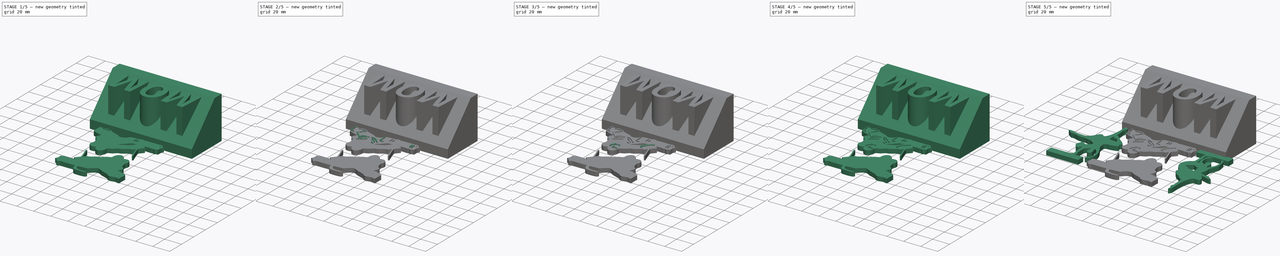
[diagram: build sequence overview — one tinted view per stage of 5, left to right]
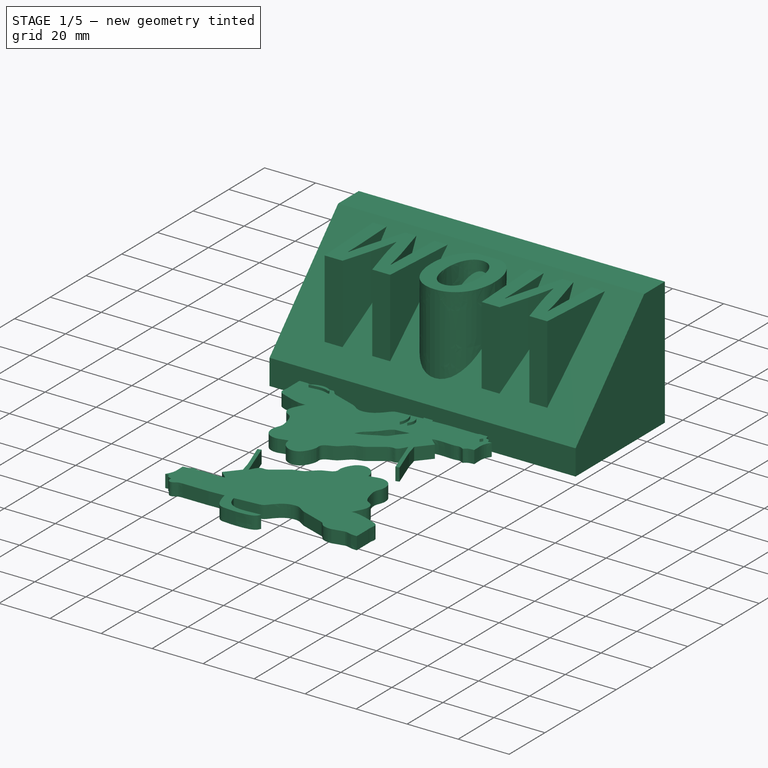
[diagram: stage 1 of 5 — iso view after this stage's code; geometry added in this stage tinted green]
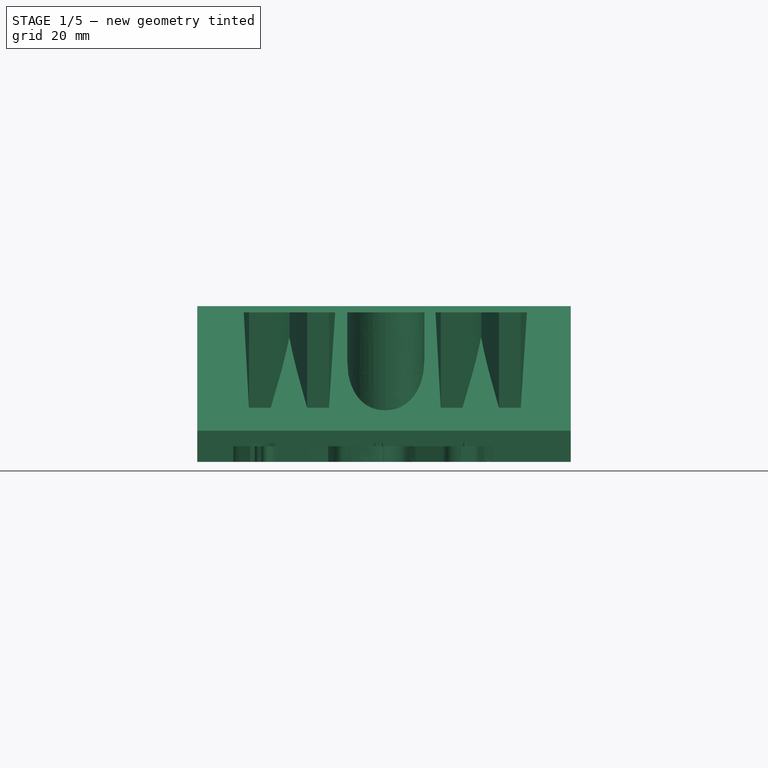
[diagram: stage 1 of 5 — front view after this stage's code; geometry added in this stage tinted green]
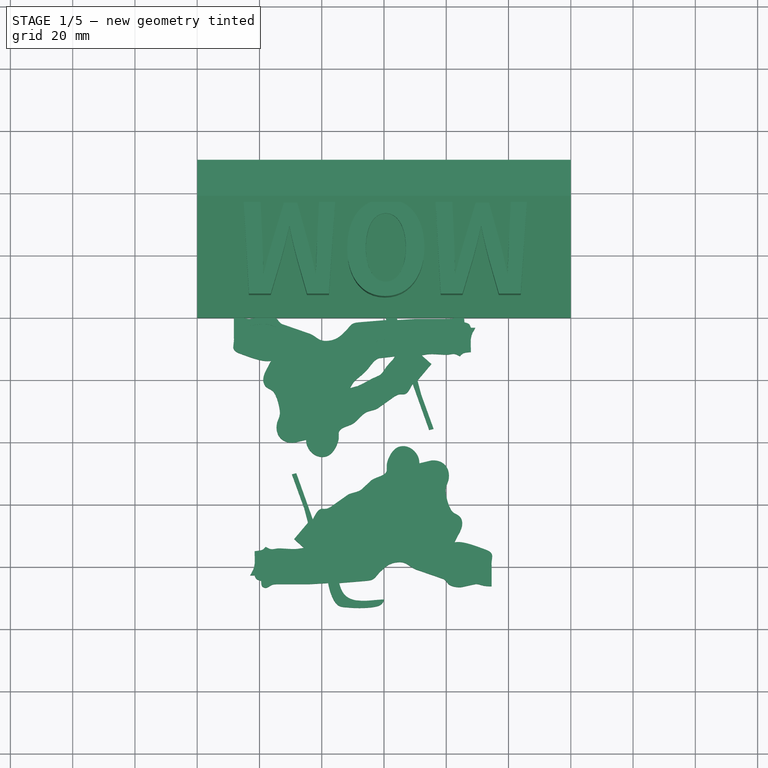
[diagram: stage 1 of 5 — top view after this stage's code; geometry added in this stage tinted green]
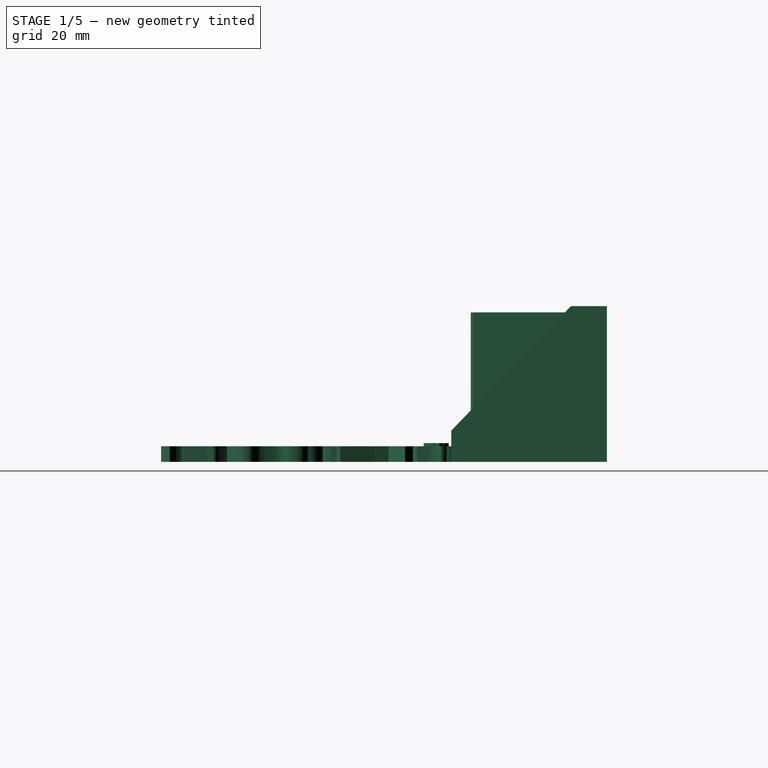
[diagram: stage 1 of 5 — right view after this stage's code; geometry added in this stage tinted green]
FCSTD DOCUMENT  (FreeCAD 0.15R4671 (Git))
Label: Andrea Desk
License: All rights reserved
LicenseURL: http://en.wikipedia.org/wiki/All_rights_reserved
objects: Part::Extrusion×56, Part::Feature×27, App::DocumentObjectGroup×5, Part::Cut×4, Sketcher::SketchObject×1, PartDesign::Pad×1, Part::Part2DObjectPython×1
note: 91 computed .brp shape members not serialized (recipe doc carries the construction recipe); baked Part::Feature solids carry a one-line shape summary decoded from their .brp

FEATURE [Part::Extrusion] Extrude194
  Base = -> Face023
  Dir = (0,0,6)
  Placement = pos=(-13.6531,-85.8584,0) rot=(0,0,1;3.14159rad)
  Solid = false
FEATURE [Part::Extrusion] Extrude195
  Base = -> Face024
  Dir = (0,0,6)
  Placement = pos=(-13.6531,-85.8584,0) rot=(0,0,1;3.14159rad)
  Solid = false
FEATURE [Part::Extrusion] Extrude196
  Base = -> Face025
  Dir = (0,0,6)
  Placement = pos=(-13.6531,-85.8584,0) rot=(0,0,1;3.14159rad)
  Solid = false
FEATURE [Part::Extrusion] Extrude197
  Base = -> Face026
  Dir = (0,0,6)
  Placement = pos=(-13.6531,-85.8584,0) rot=(0,0,1;3.14159rad)
  Solid = false
FEATURE [Part::Extrusion] Extrude198
  Base = -> Face004
  Dir = (0,0,5)
  Solid = false
FEATURE [Part::Extrusion] Extrude199
  Base = -> Face011
  Dir = (0,0,5)
  Solid = false
FEATURE [Part::Extrusion] Extrude200
  Base = -> Face004
  Dir = (0,0,5)
  Solid = false
FEATURE [Part::Extrusion] Extrude201
  Base = -> Face011
  Dir = (0,0,5)
  Solid = false
FEATURE [Part::Cut] Cut002
  Base = -> Extrude199
  Placement = pos=(-13.6531,-85.8584,0) rot=(0,0,1;3.14159rad)
  Tool = -> Extrude198
FEATURE [Part::Cut] Cut003
  Base = -> Extrude200
  Placement = pos=(-13.6531,-85.8584,0) rot=(0,0,1;3.14159rad)
  Tool = -> Extrude201
FEATURE [App::DocumentObjectGroup] Group002  label="Goalie"
  Group = -> [Face004,Face005,Face006,Face007,Face008,Face009,Face010,Face011,Face012,Face013,Face014,Face015,Face016,Face017,Face018,Face019,Face020,Face021,Face022,Face023,Face024,Face025,Face026,Extrude156,Extrude157,Extrude158,Extrude159,Extrude160,Extrude161,Extrude162,Extrude163,Extrude164,Extrude165,Extrude166,Extrude167,Extrude168,Extrude169,Extrude170,Extrude171,Extrude172,Extrude173,Extrude174,+25 more]
FEATURE [Sketcher::SketchObject] Sketch
  Placement = pos=(0,0,0) rot=(0.57735,0.57735,0.57735;2.0944rad)
  sketch-geometry (5):
    g0: LineSegment StartX=0 StartY=0 StartZ=0 EndX=50 EndY=0 EndZ=0
    g1: LineSegment StartX=50 StartY=0 StartZ=0 EndX=50 EndY=50 EndZ=0
    g2: LineSegment StartX=50 StartY=50 StartZ=0 EndX=38.4497 EndY=50 EndZ=0
    g3: LineSegment StartX=38.4497 StartY=50 StartZ=0 EndX=0 EndY=10 EndZ=0
    g4: LineSegment StartX=0 StartY=10 StartZ=0 EndX=0 EndY=0 EndZ=0
  constraints (13):
    c: Coincident(g-1,g0)
    c: Horizontal(g0)
    c: Coincident(g0,g1)
    c: Vertical(g1)
    c: Coincident(g1,g2)
    c: Horizontal(g2)
    c: Coincident(g2,g3)
    c: PointOnObject(g3,g-2)
    c: Coincident(g3,g4)
    c: Coincident(g4,g0)
    c: DistanceY(g1) = 50
    c: DistanceY(g4) = -10
    c: DistanceX(g0) = 50
FEATURE [PartDesign::Pad] Pad
  Length = 120
  Length2 = 100
  Midplane = true
  Placement = pos=(0,0,0) rot=(0.57735,0.57735,0.57735;2.0944rad)
  Sketch = -> Sketch
  Type = 0
FEATURE [App::DocumentObjectGroup] Group003  label="Block"
  Group = -> [Pad]
FEATURE [Part::Part2DObjectPython] ShapeString  # Draft 2D object (typed FeaturePython)
  FontFile = <userpath>/Desktop/AdobeGothicStd-Bold.otf
  Placement = pos=(-117.015,-43.3086,0) rot=(0,0,1;3.14159rad)
  Size = 25
  String = MOM
  Tracking = 0
FEATURE [Part::Extrusion] Extrude202
  Base = -> ShapeString
  Dir = (0,0,40)
  Placement = pos=(165,80,8) rot=(0,0,1;0rad)
  Solid = false
FEATURE [Part::Extrusion] Extrude203
  Base = -> ShapeString
  Dir = (0,0,40)
  Placement = pos=(165,80,8) rot=(0,0,1;0rad)
  Solid = false
FEATURE [App::DocumentObjectGroup] Group004  label="Letters"
  Group = -> [Extrude202,Extrude203]
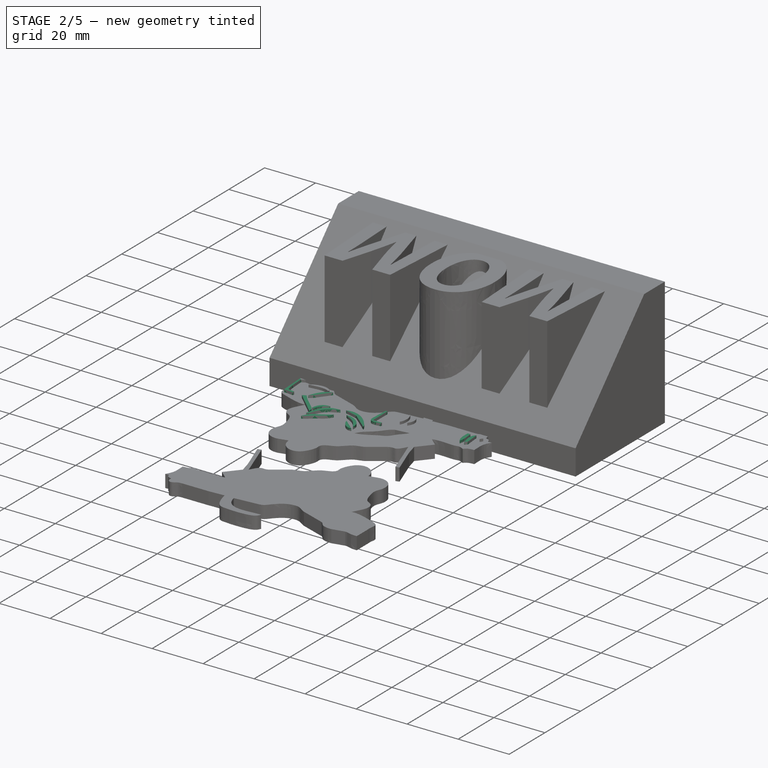
[diagram: stage 2 of 5 — iso view after this stage's code; geometry added in this stage tinted green]
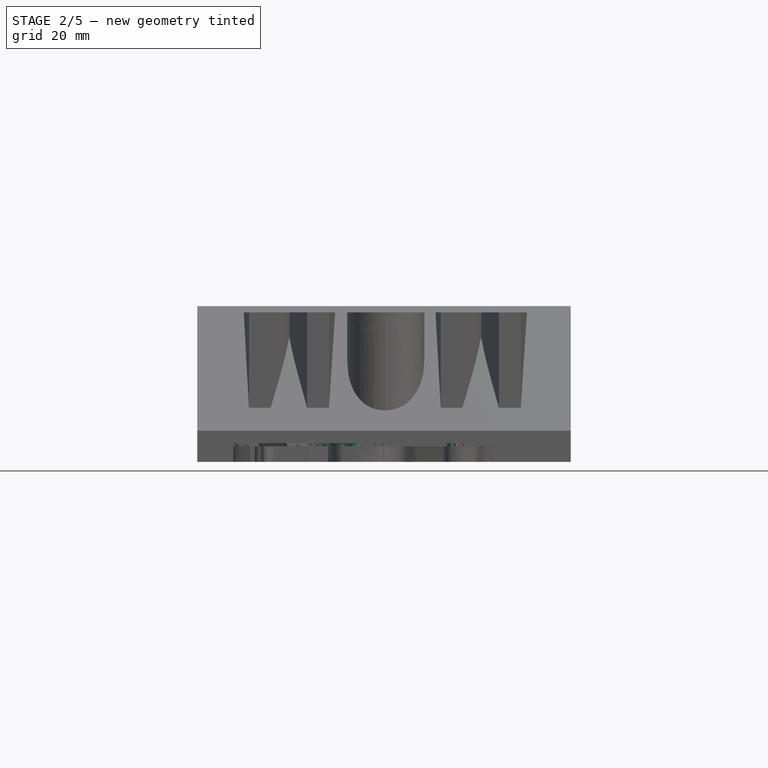
[diagram: stage 2 of 5 — front view after this stage's code; geometry added in this stage tinted green]
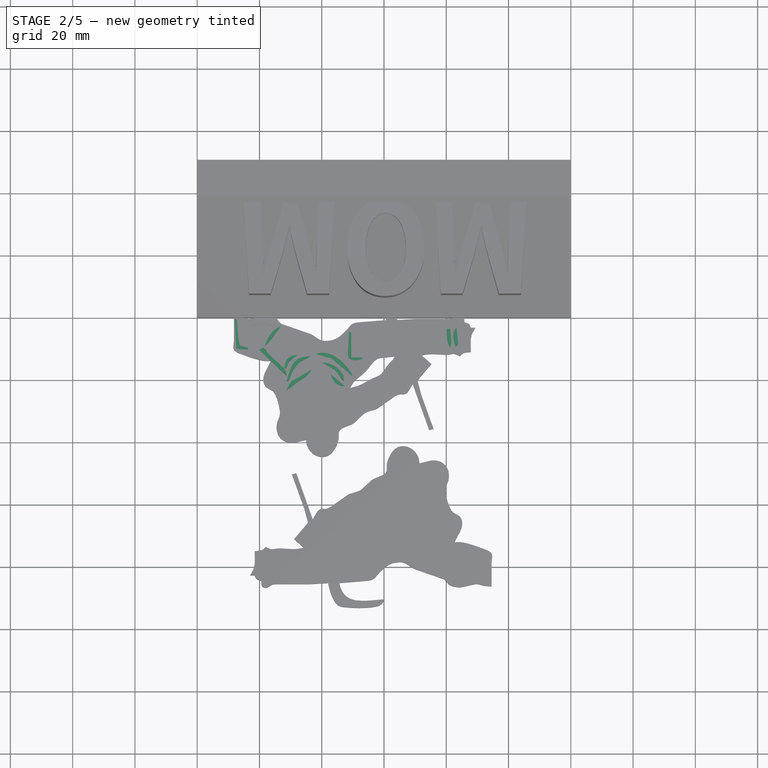
[diagram: stage 2 of 5 — top view after this stage's code; geometry added in this stage tinted green]
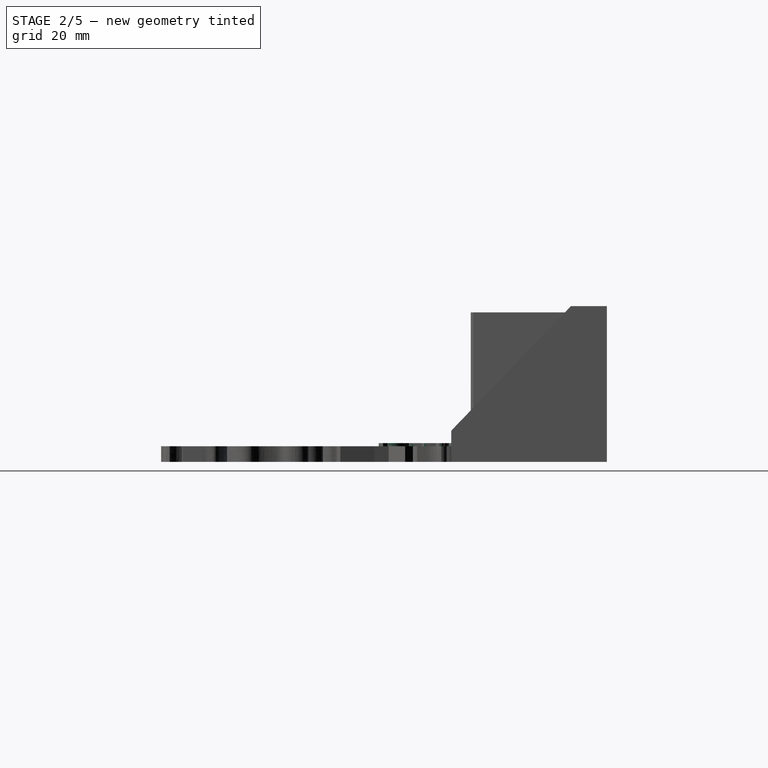
[diagram: stage 2 of 5 — right view after this stage's code; geometry added in this stage tinted green]
FEATURE [Part::Extrusion] Extrude182
  Base = -> Face010
  Dir = (0,0,6)
  Placement = pos=(-13.6531,-85.8584,0) rot=(0,0,1;3.14159rad)
  Solid = false
FEATURE [Part::Extrusion] Extrude183
  Base = -> Face012
  Dir = (0,0,6)
  Placement = pos=(-13.6531,-85.8584,0) rot=(0,0,1;3.14159rad)
  Solid = false
FEATURE [Part::Extrusion] Extrude184
  Base = -> Face013
  Dir = (0,0,6)
  Placement = pos=(-13.6531,-85.8584,0) rot=(0,0,1;3.14159rad)
  Solid = false
FEATURE [Part::Extrusion] Extrude185
  Base = -> Face014
  Dir = (0,0,6)
  Placement = pos=(-13.6531,-85.8584,0) rot=(0,0,1;3.14159rad)
  Solid = false
FEATURE [Part::Extrusion] Extrude186
  Base = -> Face015
  Dir = (0,0,6)
  Placement = pos=(-13.6531,-85.8584,0) rot=(0,0,1;3.14159rad)
  Solid = false
FEATURE [Part::Extrusion] Extrude187
  Base = -> Face016
  Dir = (0,0,6)
  Placement = pos=(-13.6531,-85.8584,0) rot=(0,0,1;3.14159rad)
  Solid = false
FEATURE [Part::Extrusion] Extrude188
  Base = -> Face017
  Dir = (0,0,6)
  Placement = pos=(-13.6531,-85.8584,0) rot=(0,0,1;3.14159rad)
  Solid = false
FEATURE [Part::Extrusion] Extrude189
  Base = -> Face018
  Dir = (0,0,6)
  Placement = pos=(-13.6531,-85.8584,0) rot=(0,0,1;3.14159rad)
  Solid = false
FEATURE [Part::Extrusion] Extrude190
  Base = -> Face019
  Dir = (0,0,6)
  Placement = pos=(-13.6531,-85.8584,0) rot=(0,0,1;3.14159rad)
  Solid = false
FEATURE [Part::Extrusion] Extrude191
  Base = -> Face020
  Dir = (0,0,6)
  Placement = pos=(-13.6531,-85.8584,0) rot=(0,0,1;3.14159rad)
  Solid = false
FEATURE [Part::Extrusion] Extrude192
  Base = -> Face021
  Dir = (0,0,6)
  Placement = pos=(-13.6531,-85.8584,0) rot=(0,0,1;3.14159rad)
  Solid = false
FEATURE [Part::Extrusion] Extrude193
  Base = -> Face022
  Dir = (0,0,6)
  Placement = pos=(-13.6531,-85.8584,0) rot=(0,0,1;3.14159rad)
  Solid = false
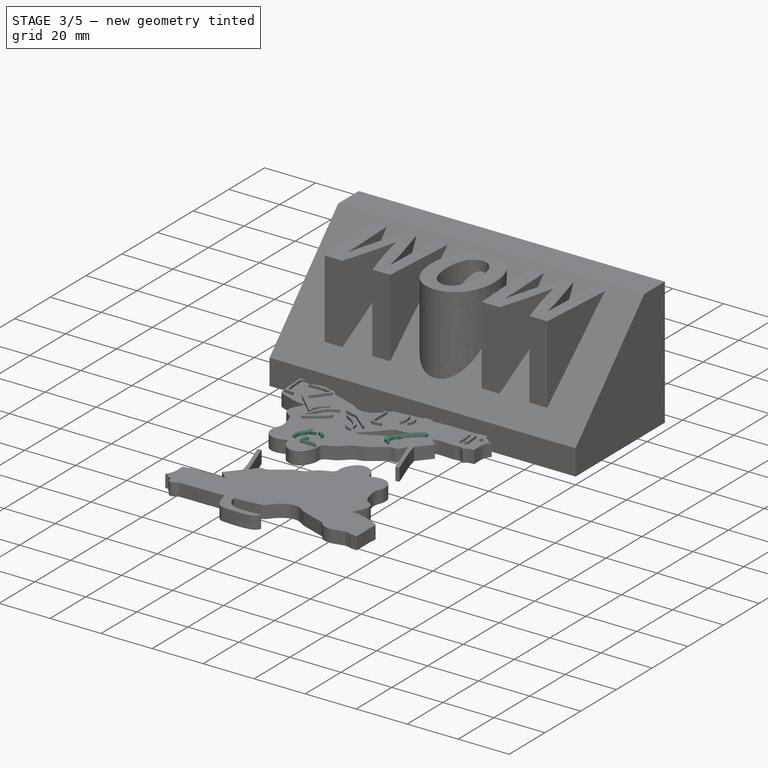
[diagram: stage 3 of 5 — iso view after this stage's code; geometry added in this stage tinted green]
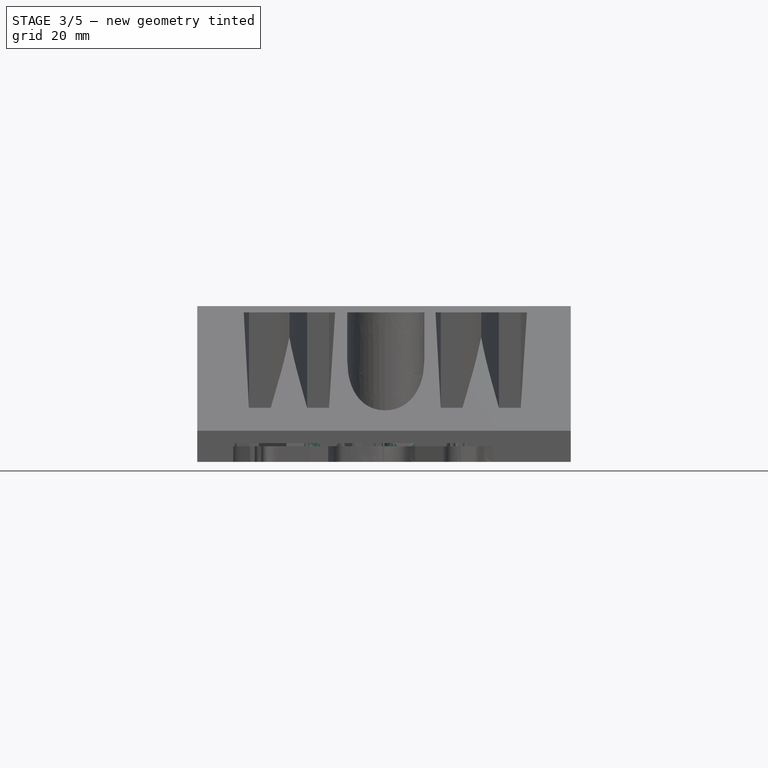
[diagram: stage 3 of 5 — front view after this stage's code; geometry added in this stage tinted green]
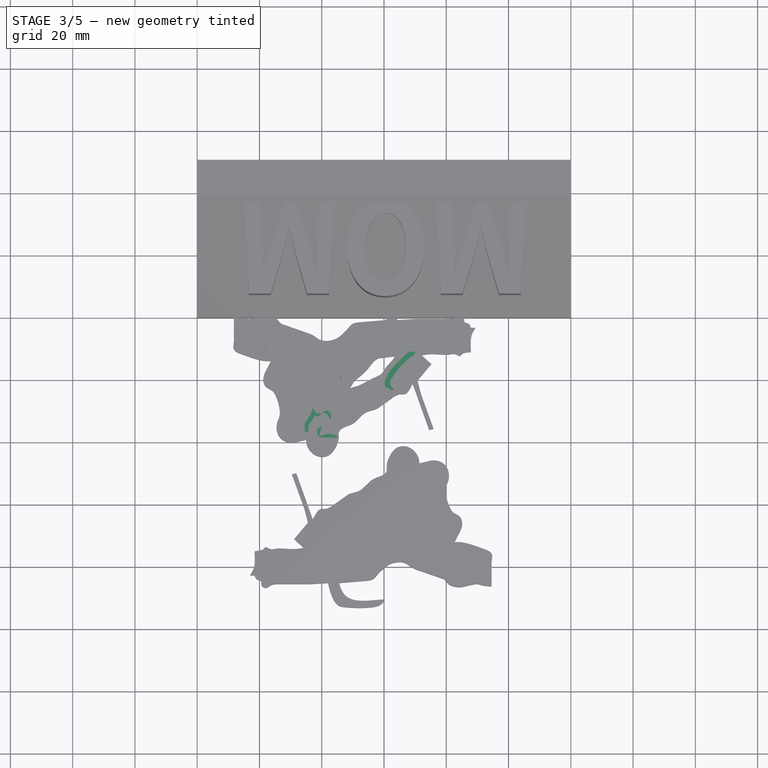
[diagram: stage 3 of 5 — top view after this stage's code; geometry added in this stage tinted green]
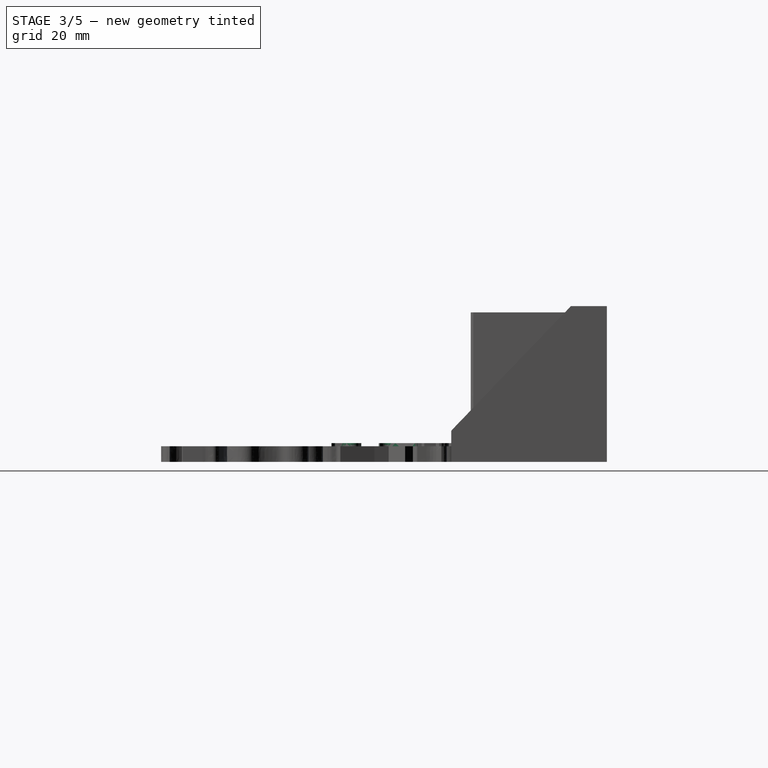
[diagram: stage 3 of 5 — right view after this stage's code; geometry added in this stage tinted green]
FEATURE [Part::Extrusion] Extrude170
  Base = -> Face020
  Dir = (0,0,6)
  Placement = pos=(-13.6531,-85.8584,0) rot=(0,0,1;3.14159rad)
  Solid = false
FEATURE [Part::Extrusion] Extrude171
  Base = -> Face021
  Dir = (0,0,6)
  Placement = pos=(-13.6531,-85.8584,0) rot=(0,0,1;3.14159rad)
  Solid = false
FEATURE [Part::Extrusion] Extrude172
  Base = -> Face022
  Dir = (0,0,6)
  Placement = pos=(-13.6531,-85.8584,0) rot=(0,0,1;3.14159rad)
  Solid = false
FEATURE [Part::Extrusion] Extrude173
  Base = -> Face023
  Dir = (0,0,6)
  Placement = pos=(-13.6531,-85.8584,0) rot=(0,0,1;3.14159rad)
  Solid = false
FEATURE [Part::Extrusion] Extrude174
  Base = -> Face024
  Dir = (0,0,6)
  Placement = pos=(-13.6531,-85.8584,0) rot=(0,0,1;3.14159rad)
  Solid = false
FEATURE [Part::Extrusion] Extrude175
  Base = -> Face025
  Dir = (0,0,6)
  Placement = pos=(-13.6531,-85.8584,0) rot=(0,0,1;3.14159rad)
  Solid = false
FEATURE [Part::Extrusion] Extrude176
  Base = -> Face026
  Dir = (0,0,6)
  Placement = pos=(-13.6531,-85.8584,0) rot=(0,0,1;3.14159rad)
  Solid = false
FEATURE [Part::Extrusion] Extrude177
  Base = -> Face005
  Dir = (0,0,6)
  Placement = pos=(-13.6531,-85.8584,0) rot=(0,0,1;3.14159rad)
  Solid = false
FEATURE [Part::Extrusion] Extrude178
  Base = -> Face006
  Dir = (0,0,6)
  Placement = pos=(-13.6531,-85.8584,0) rot=(0,0,1;3.14159rad)
  Solid = false
FEATURE [Part::Extrusion] Extrude179
  Base = -> Face007
  Dir = (0,0,6)
  Placement = pos=(-13.6531,-85.8584,0) rot=(0,0,1;3.14159rad)
  Solid = false
FEATURE [Part::Extrusion] Extrude180
  Base = -> Face008
  Dir = (0,0,6)
  Placement = pos=(-13.6531,-85.8584,0) rot=(0,0,1;3.14159rad)
  Solid = false
FEATURE [Part::Extrusion] Extrude181
  Base = -> Face009
  Dir = (0,0,6)
  Placement = pos=(-13.6531,-85.8584,0) rot=(0,0,1;3.14159rad)
  Solid = false
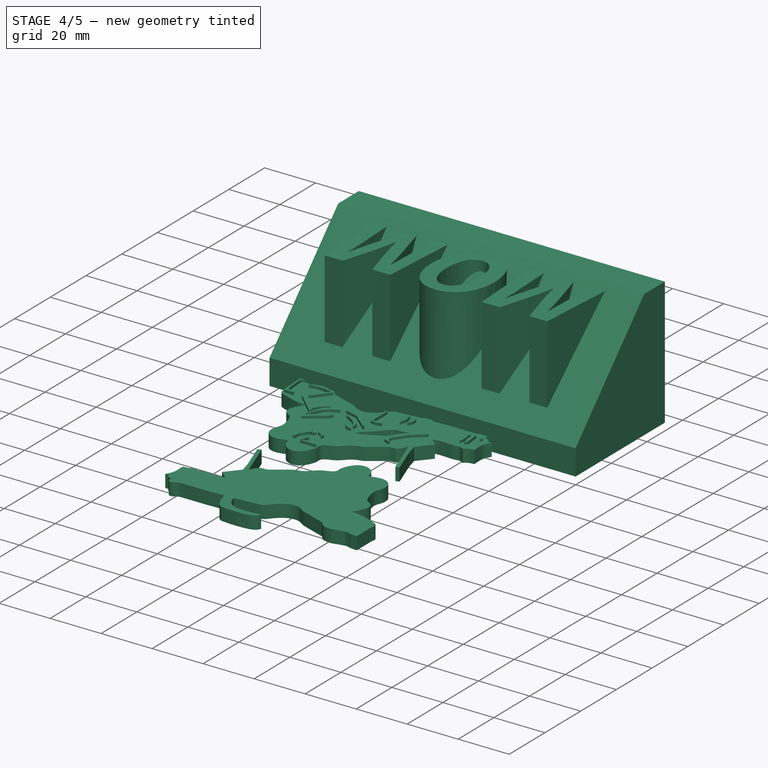
[diagram: stage 4 of 5 — iso view after this stage's code; geometry added in this stage tinted green]
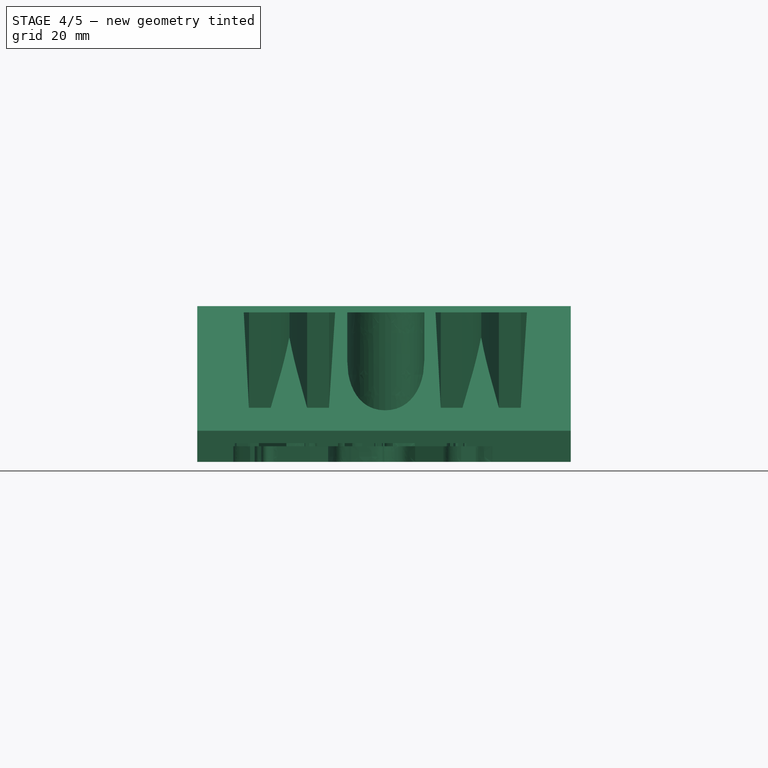
[diagram: stage 4 of 5 — front view after this stage's code; geometry added in this stage tinted green]
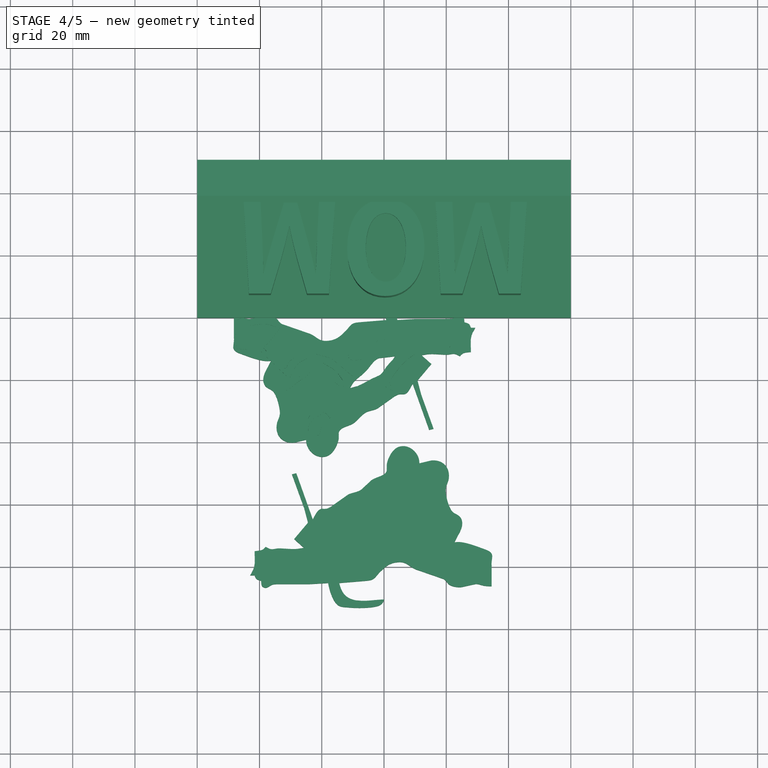
[diagram: stage 4 of 5 — top view after this stage's code; geometry added in this stage tinted green]
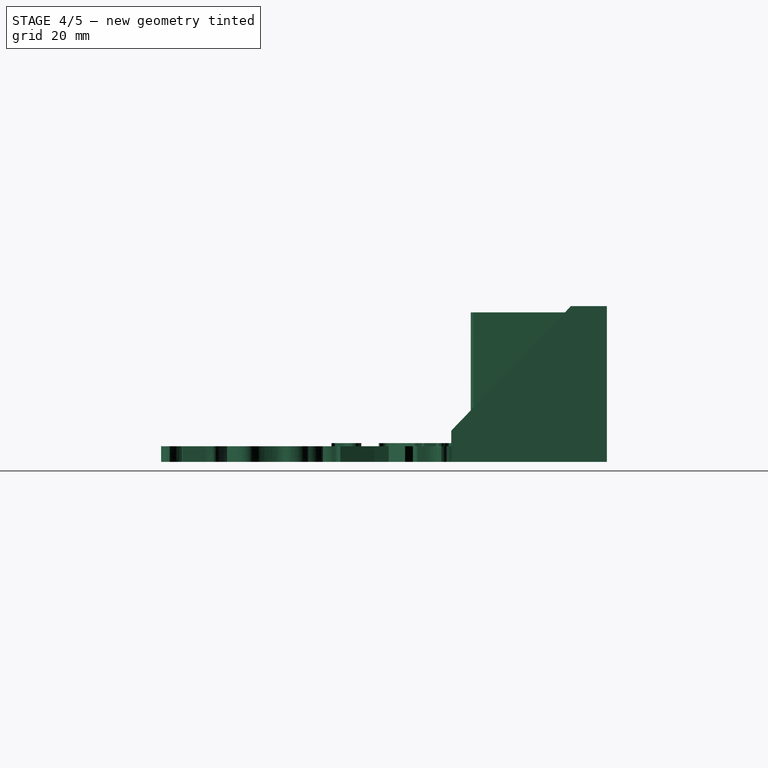
[diagram: stage 4 of 5 — right view after this stage's code; geometry added in this stage tinted green]
FEATURE [Part::Extrusion] Extrude158
  Base = -> Face007
  Dir = (0,0,6)
  Placement = pos=(-13.6531,-85.8584,0) rot=(0,0,1;3.14159rad)
  Solid = false
FEATURE [Part::Extrusion] Extrude159
  Base = -> Face008
  Dir = (0,0,6)
  Placement = pos=(-13.6531,-85.8584,0) rot=(0,0,1;3.14159rad)
  Solid = false
FEATURE [Part::Extrusion] Extrude160
  Base = -> Face009
  Dir = (0,0,6)
  Placement = pos=(-13.6531,-85.8584,0) rot=(0,0,1;3.14159rad)
  Solid = false
FEATURE [Part::Extrusion] Extrude161
  Base = -> Face010
  Dir = (0,0,6)
  Placement = pos=(-13.6531,-85.8584,0) rot=(0,0,1;3.14159rad)
  Solid = false
FEATURE [Part::Extrusion] Extrude162
  Base = -> Face012
  Dir = (0,0,6)
  Placement = pos=(-13.6531,-85.8584,0) rot=(0,0,1;3.14159rad)
  Solid = false
FEATURE [Part::Extrusion] Extrude163
  Base = -> Face013
  Dir = (0,0,6)
  Placement = pos=(-13.6531,-85.8584,0) rot=(0,0,1;3.14159rad)
  Solid = false
FEATURE [Part::Extrusion] Extrude164
  Base = -> Face014
  Dir = (0,0,6)
  Placement = pos=(-13.6531,-85.8584,0) rot=(0,0,1;3.14159rad)
  Solid = false
FEATURE [Part::Extrusion] Extrude165
  Base = -> Face015
  Dir = (0,0,6)
  Placement = pos=(-13.6531,-85.8584,0) rot=(0,0,1;3.14159rad)
  Solid = false
FEATURE [Part::Extrusion] Extrude166
  Base = -> Face016
  Dir = (0,0,6)
  Placement = pos=(-13.6531,-85.8584,0) rot=(0,0,1;3.14159rad)
  Solid = false
FEATURE [Part::Extrusion] Extrude167
  Base = -> Face017
  Dir = (0,0,6)
  Placement = pos=(-13.6531,-85.8584,0) rot=(0,0,1;3.14159rad)
  Solid = false
FEATURE [Part::Extrusion] Extrude168
  Base = -> Face018
  Dir = (0,0,6)
  Placement = pos=(-13.6531,-85.8584,0) rot=(0,0,1;3.14159rad)
  Solid = false
FEATURE [Part::Extrusion] Extrude169
  Base = -> Face019
  Dir = (0,0,6)
  Placement = pos=(-13.6531,-85.8584,0) rot=(0,0,1;3.14159rad)
  Solid = false
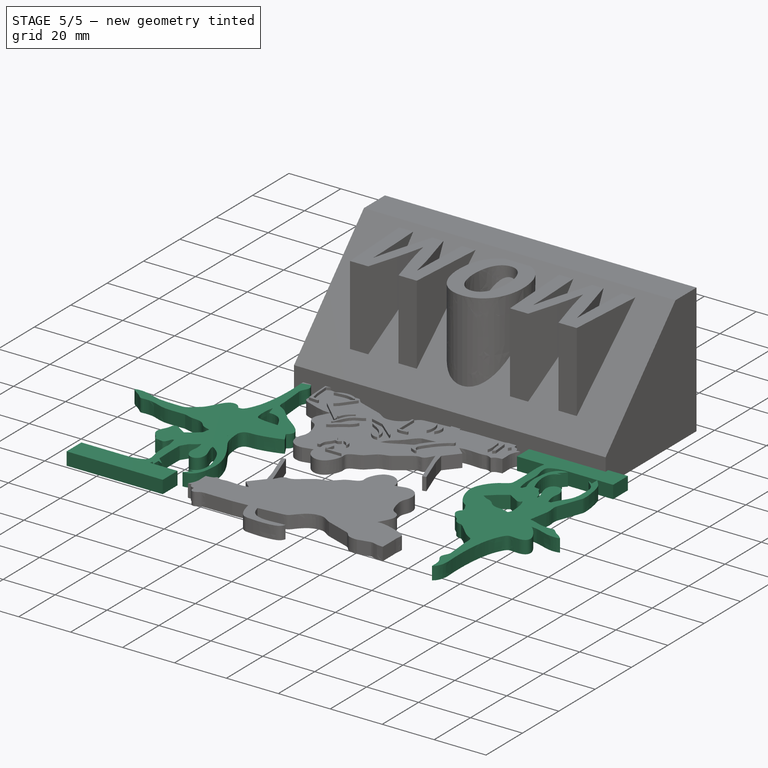
[diagram: stage 5 of 5 — iso view after this stage's code; geometry added in this stage tinted green]
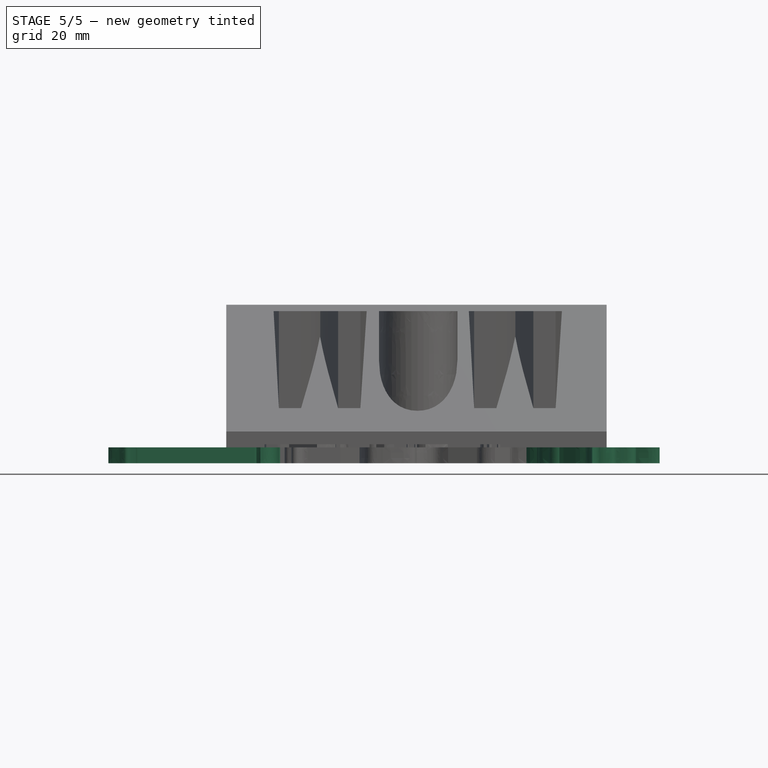
[diagram: stage 5 of 5 — front view after this stage's code; geometry added in this stage tinted green]
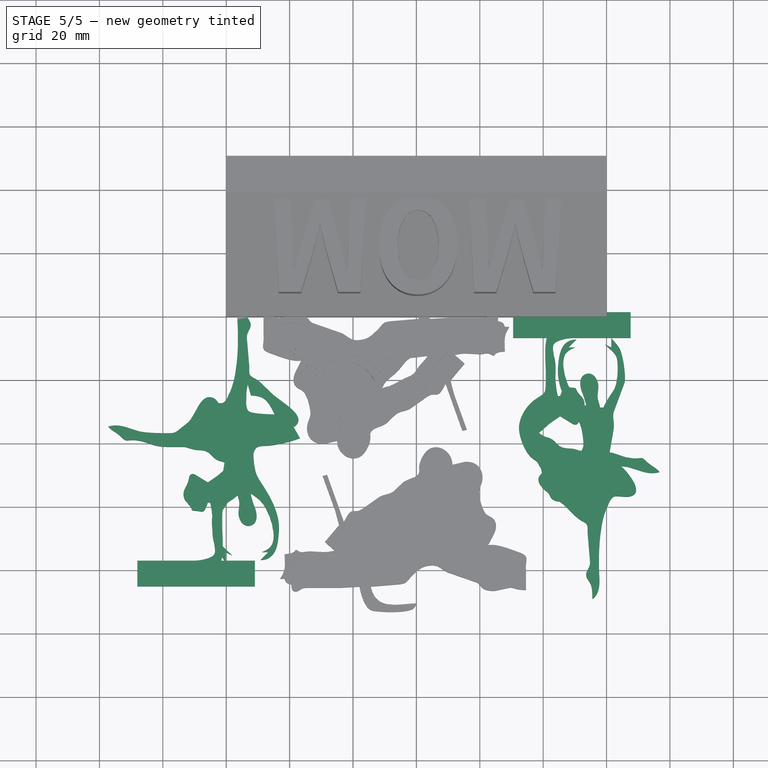
[diagram: stage 5 of 5 — top view after this stage's code; geometry added in this stage tinted green]
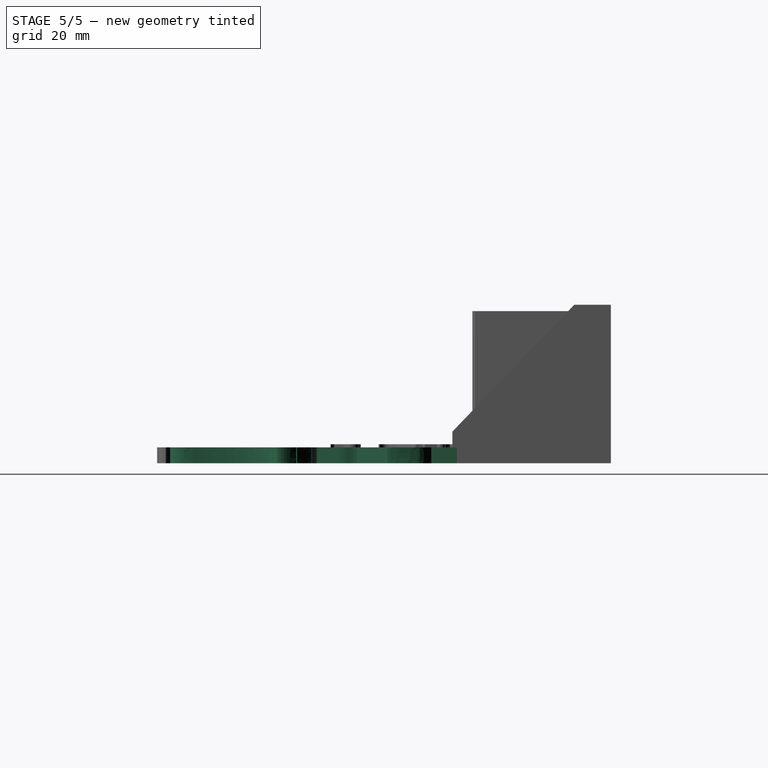
[diagram: stage 5 of 5 — right view after this stage's code; geometry added in this stage tinted green]
FEATURE [Part::Feature] Face
  Placement = pos=(11.0575,-3.68584,0) rot=(0,0,1;0rad)
  shape: bbox 31.95 x 82.38 x 2e-07 mm, 1 faces, 0 solids (baked)
FEATURE [Part::Feature] Face001
  Placement = pos=(11.0575,-3.68584,0) rot=(0,0,1;0rad)
  shape: bbox 9.493 x 9.486 x 2e-07 mm, 1 faces, 0 solids (baked)
FEATURE [Part::Feature] Face002
  Placement = pos=(-10.189,-0.110058,0) rot=(0,0,1;0rad)
  shape: bbox 46.21 x 60.05 x 2e-07 mm, 1 faces, 0 solids (baked)
FEATURE [Part::Feature] Face003
  Placement = pos=(-10.189,-0.110058,0) rot=(0,0,1;0rad)
  shape: bbox 4.939 x 4.233 x 2e-07 mm, 1 faces, 0 solids (baked)
FEATURE [Part::Extrusion] Extrude
  Base = -> Face
  Dir = (0,0,5)
  Solid = false
FEATURE [Part::Extrusion] Extrude001
  Base = -> Face001
  Dir = (0,0,5)
  Solid = false
FEATURE [Part::Extrusion] Extrude002
  Base = -> Face
  Dir = (0,0,5)
  Solid = false
FEATURE [Part::Extrusion] Extrude003
  Base = -> Face001
  Dir = (0,0,5)
  Solid = false
FEATURE [Part::Extrusion] Extrude152
  Base = -> Face002
  Dir = (0,0,5)
  Solid = false
FEATURE [Part::Extrusion] Extrude153
  Base = -> Face003
  Dir = (0,0,5)
  Solid = false
FEATURE [Part::Extrusion] Extrude154
  Base = -> Face002
  Dir = (0,0,5)
  Solid = false
FEATURE [Part::Extrusion] Extrude155
  Base = -> Face003
  Dir = (0,0,5)
  Solid = false
FEATURE [Part::Cut] Cut
  Base = -> Extrude152
  Placement = pos=(-20.4431,-83.6312,0) rot=(0,0,1;3.14159rad)
  Tool = -> Extrude153
FEATURE [App::DocumentObjectGroup] Group001  label="Gymnast"
  Group = -> [Face002,Face003,Extrude154,Extrude155,Cut]
FEATURE [Part::Cut] Cut001
  Base = -> Extrude
  Placement = pos=(1.29169,-83.9275,0) rot=(0,0,1;3.14159rad)
  Tool = -> Extrude001
FEATURE [App::DocumentObjectGroup] Group  label="Ballerina"
  Group = -> [Face,Face001,Extrude002,Extrude003,Cut001]
FEATURE [Part::Feature] Face004
  shape: bbox 77.85 x 52.66 x 2e-07 mm, 1 faces, 0 solids (baked)
FEATURE [Part::Feature] Face005
  shape: bbox 6.35 x 1.477 x 2e-07 mm, 1 faces, 0 solids (baked)
FEATURE [Part::Feature] Face006
  shape: bbox 1.601 x 2.822 x 2e-07 mm, 1 faces, 0 solids (baked)
FEATURE [Part::Feature] Face007
  shape: bbox 5.89 x 7.761 x 2e-07 mm, 1 faces, 0 solids (baked)
FEATURE [Part::Feature] Face008
  shape: bbox 3.101 x 3.012 x 2e-07 mm, 1 faces, 0 solids (baked)
FEATURE [Part::Feature] Face009
  shape: bbox 9.9 x 12.67 x 2e-07 mm, 1 faces, 0 solids (baked)
FEATURE [Part::Feature] Face010
  shape: bbox 8.114 x 6.703 x 2e-07 mm, 1 faces, 0 solids (baked)
FEATURE [Part::Feature] Face011
  shape: bbox 14.46 x 10.23 x 2e-07 mm, 1 faces, 0 solids (baked)
FEATURE [Part::Feature] Face012
  shape: bbox 4.586 x 4.229 x 2e-07 mm, 1 faces, 0 solids (baked)
FEATURE [Part::Feature] Face013
  shape: bbox 7.256 x 6.498 x 2e-07 mm, 1 faces, 0 solids (baked)
FEATURE [Part::Feature] Face014
  shape: bbox 7.761 x 8.114 x 2e-07 mm, 1 faces, 0 solids (baked)
FEATURE [Part::Feature] Face015
  shape: bbox 11.64 x 7.969 x 2e-07 mm, 1 faces, 0 solids (baked)
FEATURE [Part::Feature] Face016
  shape: bbox 8.992 x 9.172 x 2e-07 mm, 1 faces, 0 solids (baked)
FEATURE [Part::Feature] Face017
  shape: bbox 4.233 x 4.36 x 2e-07 mm, 1 faces, 0 solids (baked)
FEATURE [Part::Feature] Face018
  shape: bbox 4.611 x 9.156 x 2e-07 mm, 1 faces, 0 solids (baked)
FEATURE [Part::Feature] Face019
  shape: bbox 4.233 x 10.23 x 2e-07 mm, 1 faces, 0 solids (baked)
FEATURE [Part::Feature] Face020
  shape: bbox 1.911 x 6.35 x 2e-07 mm, 1 faces, 0 solids (baked)
FEATURE [Part::Feature] Face021
  shape: bbox 1.725 x 5.997 x 2e-07 mm, 1 faces, 0 solids (baked)
FEATURE [Part::Feature] Face022
  shape: bbox 5.292 x 6.35 x 2e-07 mm, 1 faces, 0 solids (baked)
FEATURE [Part::Feature] Face023
  shape: bbox 1.307 x 6.35 x 2e-07 mm, 1 faces, 0 solids (baked)
FEATURE [Part::Feature] Face024
  shape: bbox 1.59 x 4.939 x 2e-07 mm, 1 faces, 0 solids (baked)
FEATURE [Part::Feature] Face025
  shape: bbox 1.058 x 1.058 x 2e-07 mm, 1 faces, 0 solids (baked)
FEATURE [Part::Feature] Face026
  shape: bbox 8.114 x 2.168 x 2e-07 mm, 1 faces, 0 solids (baked)
FEATURE [Part::Extrusion] Extrude156
  Base = -> Face005
  Dir = (0,0,6)
  Placement = pos=(-13.6531,-85.8584,0) rot=(0,0,1;3.14159rad)
  Solid = false
FEATURE [Part::Extrusion] Extrude157
  Base = -> Face006
  Dir = (0,0,6)
  Placement = pos=(-13.6531,-85.8584,0) rot=(0,0,1;3.14159rad)
  Solid = false
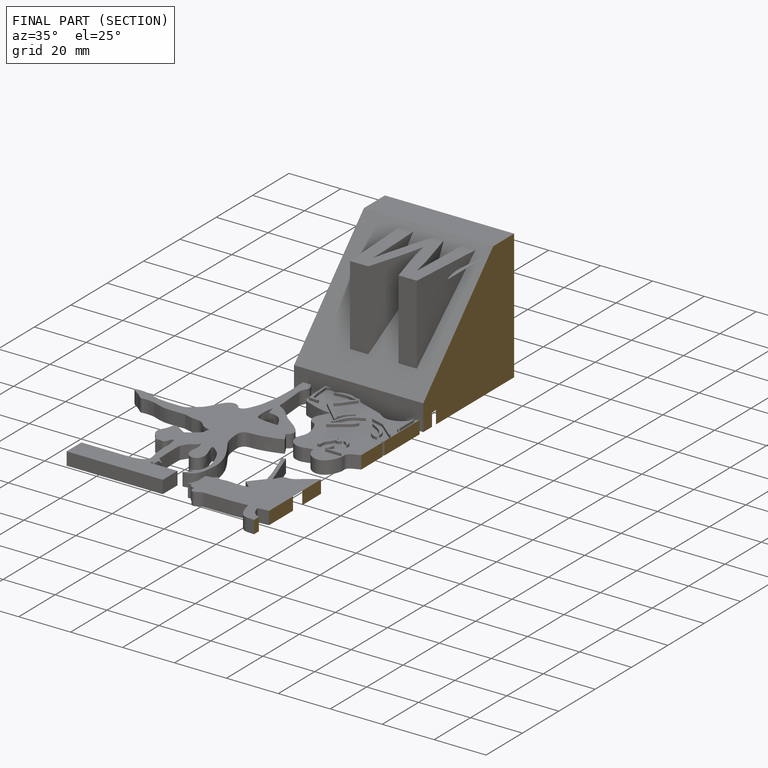
[diagram: finished part — half-section view (interior)]
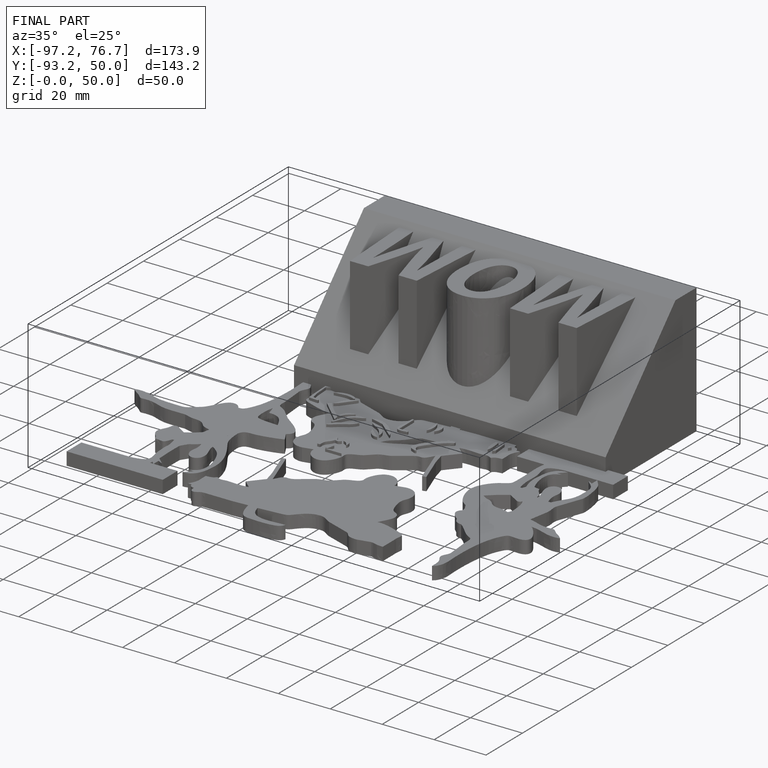
[diagram: finished part — iso view with bounding-box wireframe]
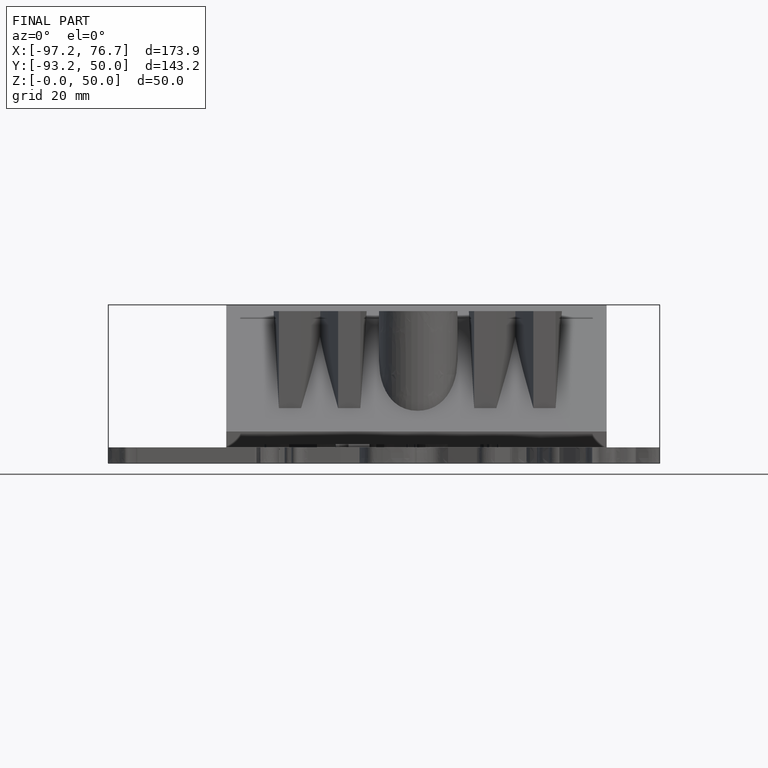
[diagram: finished part — front view with bounding-box wireframe]
